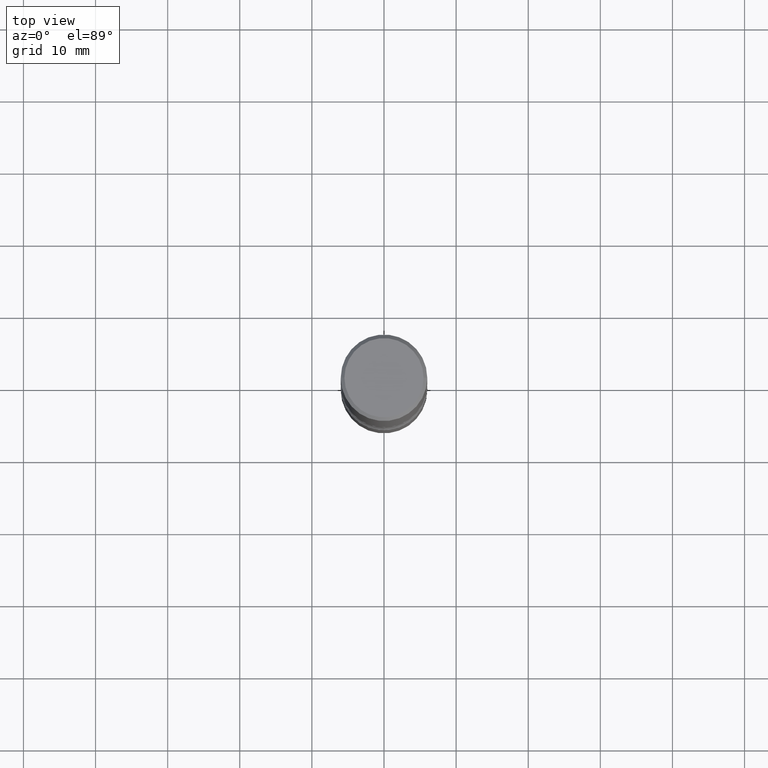
[diagram: clean part render]
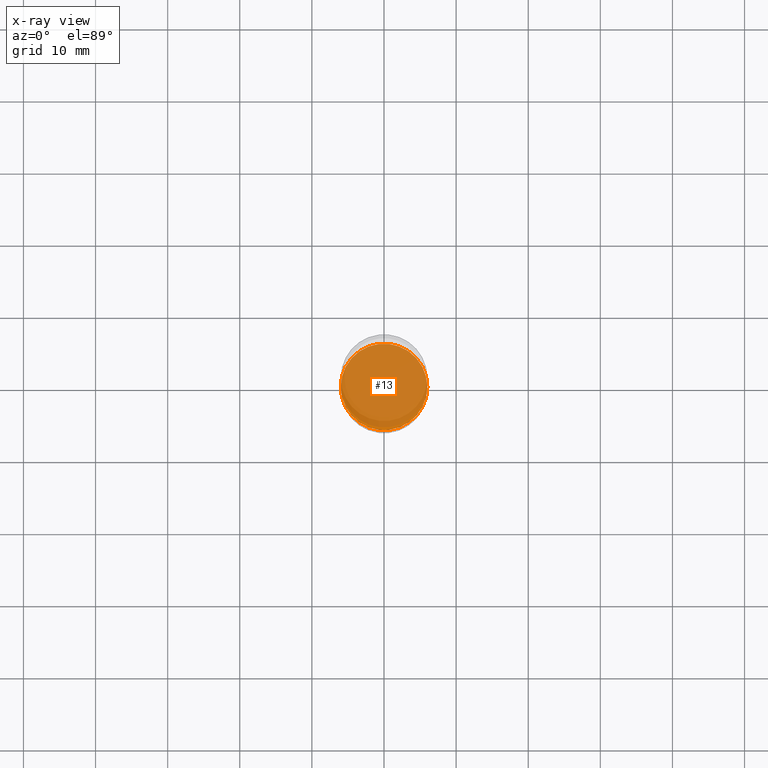
[diagram: x-ray — body ghosted, one internal face saturated and labeled with its STEP entity id]
A machine part, top view, then the same camera in x-ray: the body is ghosted and one INTERNAL B-rep face — a face not visible from any outside direction — is saturated and labeled: STEP entity #13.
In plain terms, the highlighted planar face has unit normal (0, -0, -1).
Its self-contained STEP definition (entity closure, byte-faithful):
#2 = CARTESIAN_POINT ( 'NONE',  ( 7.124628819939777829E-29, -1.017208173258562247E-14, -2.913400000000000212 ) ) ;
#13 = ADVANCED_FACE ( 'NONE', ( #483 ), #99, .F. ) ;
#47 = DIRECTION ( 'NONE',  ( 1.000000000000000000, -6.982962677686269077E-15, 0.000000000000000000 ) ) ;
#66 = DIRECTION ( 'NONE',  ( 2.438088387897960049E-29, -3.491481338843145188E-15, -1.000000000000000000 ) ) ;
#99 = PLANE ( 'NONE',  #382 ) ;
#119 = CIRCLE ( 'NONE', #131, 0.2362000000000001321 ) ;
#131 = AXIS2_PLACEMENT_3D ( 'NONE', #2, #438, #47 ) ;
#156 = EDGE_LOOP ( 'NONE', ( #159, #189 ) ) ;
#159 = ORIENTED_EDGE ( 'NONE', *, *, #292, .T. ) ;
#168 = EDGE_CURVE ( 'NONE', #384, #203, #420, .T. ) ;
#189 = ORIENTED_EDGE ( 'NONE', *, *, #168, .T. ) ;
#203 = VERTEX_POINT ( 'NONE', #417 ) ;
#209 = DIRECTION ( 'NONE',  ( -2.445468806185136597E-29, 3.491481338843145583E-15, 1.000000000000000000 ) ) ;
#212 = AXIS2_PLACEMENT_3D ( 'NONE', #217, #209, #470 ) ;
#217 = CARTESIAN_POINT ( 'NONE',  ( 7.124628819939777829E-29, -1.017208173258562247E-14, -2.913400000000000212 ) ) ;
#229 = DIRECTION ( 'NONE',  ( -1.000000000000000000, 6.982962677686265922E-15, -4.876176775795935793E-29 ) ) ;
#271 = CARTESIAN_POINT ( 'NONE',  ( 7.124628819939777829E-29, -1.017208173258562247E-14, -2.913400000000000212 ) ) ;
#292 = EDGE_CURVE ( 'NONE', #203, #384, #119, .T. ) ;
#353 = CARTESIAN_POINT ( 'NONE',  ( -0.2362000000000001321, -1.017754666637736977E-14, -2.913400000000000212 ) ) ;
#382 = AXIS2_PLACEMENT_3D ( 'NONE', #271, #66, #229 ) ;
#384 = VERTEX_POINT ( 'NONE', #353 ) ;
#417 = CARTESIAN_POINT ( 'NONE',  ( 0.2362000000000001321, -1.182145751705511899E-14, -2.913400000000000212 ) ) ;
#420 = CIRCLE ( 'NONE', #212, 0.2362000000000001321 ) ;
#438 = DIRECTION ( 'NONE',  ( -2.445468806185136597E-29, 3.491481338843145583E-15, 1.000000000000000000 ) ) ;
#470 = DIRECTION ( 'NONE',  ( 1.000000000000000000, -6.982962677686269077E-15, 0.000000000000000000 ) ) ;
#483 = FACE_OUTER_BOUND ( 'NONE', #156, .T. ) ;